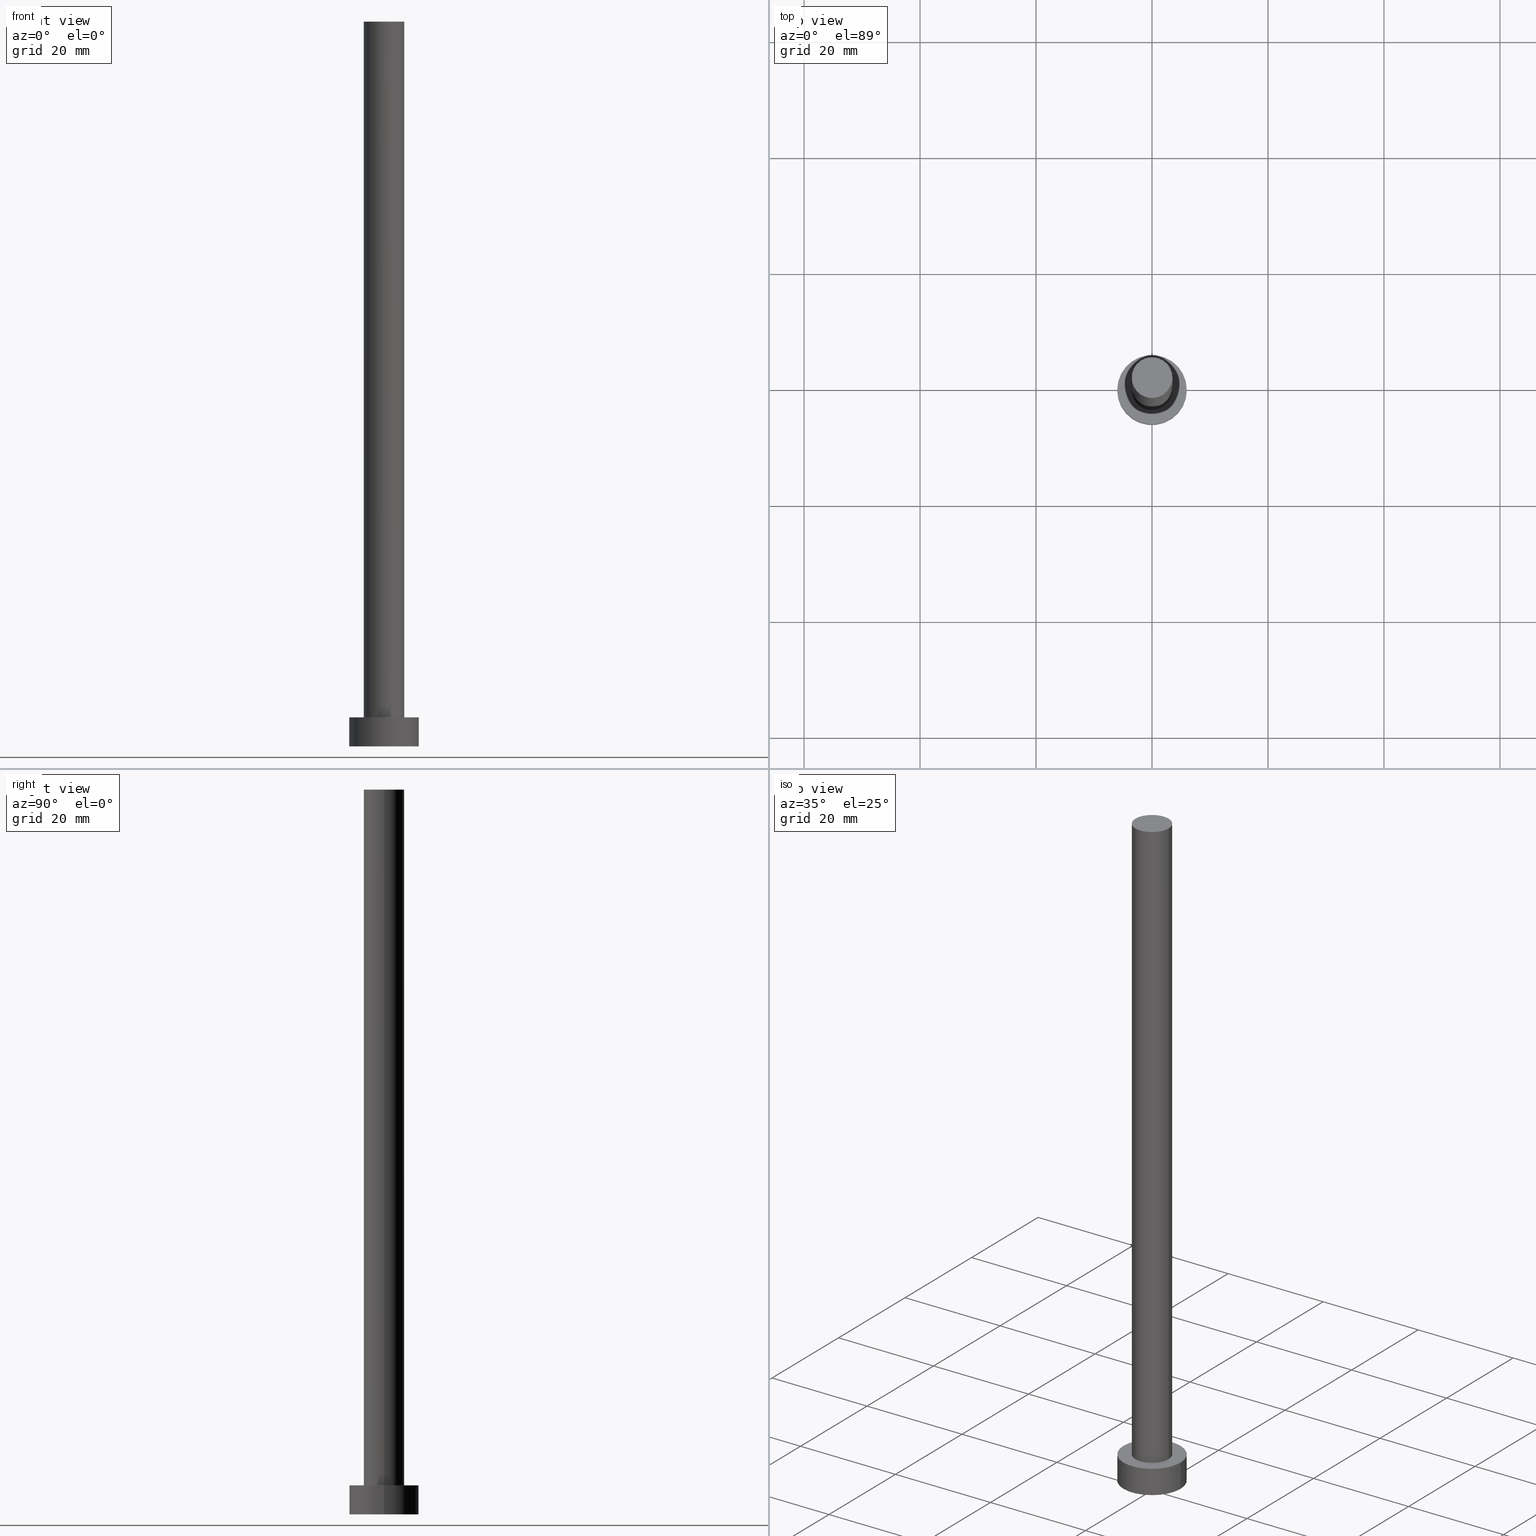
[diagram: canonical four-view strip — front | top / right | iso, engineering-drawing reading convention]
A machine part, canonical four-view strip (front | top / right | iso — engineering-drawing reading convention). The complete STEP part file that produces these views, byte-faithful:
ISO-10303-21;
HEADER;
FILE_DESCRIPTION (( 'STEP AP203' ),
    '1' );
FILE_NAME ('aa55.STEP',
    '2023-02-13T11:47:05',
    ( '' ),
    ( '' ),
    'SwSTEP 2.0',
    'SolidWorks 2019',
    '' );
FILE_SCHEMA (( 'CONFIG_CONTROL_DESIGN' ));
ENDSEC;

DATA;
#1 = AXIS2_PLACEMENT_3D ( 'NONE', #41, #119, #62 ) ;
#2 = ADVANCED_FACE ( 'NONE', ( #132 ), #53, .T. ) ;
#3 = DATE_AND_TIME ( #31, #36 ) ;
#4 = EDGE_LOOP ( 'NONE', ( #186, #8 ) ) ;
#5 = AXIS2_PLACEMENT_3D ( 'NONE', #191, #19, #210 ) ;
#6 = EDGE_LOOP ( 'NONE', ( #76, #201, #235, #87 ) ) ;
#7 = APPROVAL_ROLE ( '' ) ;
#8 = ORIENTED_EDGE ( 'NONE', *, *, #80, .T. ) ;
#9 = EDGE_CURVE ( 'NONE', #204, #182, #140, .T. ) ;
#10 = ORIENTED_EDGE ( 'NONE', *, *, #29, .F. ) ;
#11 = PRODUCT_RELATED_PRODUCT_CATEGORY ( 'detail', '', ( #180 ) ) ;
#12 = AXIS2_PLACEMENT_3D ( 'NONE', #127, #220, #113 ) ;
#13 = DIRECTION ( 'NONE',  ( 0.000000000000000000, 0.000000000000000000, 1.000000000000000000 ) ) ;
#14 = CARTESIAN_POINT ( 'NONE',  ( 0.000000000000000000, 0.000000000000000000, 5.000000000000000000 ) ) ;
#15 = ADVANCED_FACE ( 'NONE', ( #208, #239 ), #223, .T. ) ;
#16 = CC_DESIGN_PERSON_AND_ORGANIZATION_ASSIGNMENT ( #222, #55, ( #216 ) ) ;
#17 = FACE_OUTER_BOUND ( 'NONE', #112, .T. ) ;
#18 = EDGE_CURVE ( 'NONE', #169, #32, #149, .T. ) ;
#19 = DIRECTION ( 'NONE',  ( -0.000000000000000000, -0.000000000000000000, -1.000000000000000000 ) ) ;
#20 = CC_DESIGN_APPROVAL ( #43, ( #114 ) ) ;
#21 = PERSON_AND_ORGANIZATION_ROLE ( 'design_owner' ) ;
#22 = ORGANIZATION ( 'NEUR�EN�', 'NEUR�EN�', '' ) ;
#23 = CALENDAR_DATE ( 2023, 13, 2 ) ;
#24 = DATE_TIME_ROLE ( 'creation_date' ) ;
#25 = ORIENTED_EDGE ( 'NONE', *, *, #109, .T. ) ;
#26 = EDGE_LOOP ( 'NONE', ( #92, #86 ) ) ;
#27 = AXIS2_PLACEMENT_3D ( 'NONE', #240, #133, #71 ) ;
#28 = SECURITY_CLASSIFICATION_LEVEL ( 'unclassified' ) ;
#29 = EDGE_CURVE ( 'NONE', #155, #213, #203, .T. ) ;
#30 = ORIENTED_EDGE ( 'NONE', *, *, #101, .T. ) ;
#31 = CALENDAR_DATE ( 2023, 13, 2 ) ;
#32 = VERTEX_POINT ( 'NONE', #226 ) ;
#33 = ORIENTED_EDGE ( 'NONE', *, *, #211, .F. ) ;
#34 = VECTOR ( 'NONE', #154, 1000.000000000000000 ) ;
#35 = CYLINDRICAL_SURFACE ( 'NONE', #1, 6.000000000000000888 ) ;
#36 = LOCAL_TIME ( 12, 47, 5.000000000000000000, #187 ) ;
#37 = CARTESIAN_POINT ( 'NONE',  ( 6.000000000000000888, 7.347880794884120722E-16, 0.000000000000000000 ) ) ;
#38 = DIRECTION ( 'NONE',  ( -0.000000000000000000, -0.000000000000000000, -1.000000000000000000 ) ) ;
#39 = EDGE_CURVE ( 'NONE', #32, #214, #194, .T. ) ;
#40 = CC_DESIGN_SECURITY_CLASSIFICATION ( #114, ( #216 ) ) ;
#41 = CARTESIAN_POINT ( 'NONE',  ( 0.000000000000000000, 0.000000000000000000, 5.000000000000000000 ) ) ;
#42 = LOCAL_TIME ( 12, 47, 5.000000000000000000, #217 ) ;
#43 = APPROVAL ( #107, 'NEUR�EN�' ) ;
#44 = APPROVAL_DATE_TIME ( #84, #245 ) ;
#45 = EDGE_LOOP ( 'NONE', ( #184, #33 ) ) ;
#46 = AXIS2_PLACEMENT_3D ( 'NONE', #170, #151, #129 ) ;
#47 = CIRCLE ( 'NONE', #231, 6.000000000000000888 ) ;
#48 = DATE_AND_TIME ( #72, #74 ) ;
#49 = ORIENTED_EDGE ( 'NONE', *, *, #137, .F. ) ;
#50 = APPLICATION_CONTEXT ( 'configuration controlled 3d designs of mechanical parts and assemblies' ) ;
#51 = DIRECTION ( 'NONE',  ( 1.000000000000000000, 0.000000000000000000, 0.000000000000000000 ) ) ;
#52 = DATE_AND_TIME ( #163, #135 ) ;
#53 = CYLINDRICAL_SURFACE ( 'NONE', #168, 3.500000000000000000 ) ;
#54 = ADVANCED_BREP_SHAPE_REPRESENTATION ( 'aa55', ( #144, #147 ), #229 ) ;
#55 = PERSON_AND_ORGANIZATION_ROLE ( 'design_supplier' ) ;
#56 = EDGE_LOOP ( 'NONE', ( #90, #25, #242, #218 ) ) ;
#57 = ORIENTED_EDGE ( 'NONE', *, *, #9, .F. ) ;
#58 = DIRECTION ( 'NONE',  ( -0.000000000000000000, -0.000000000000000000, -1.000000000000000000 ) ) ;
#59 = AXIS2_PLACEMENT_3D ( 'NONE', #165, #202, #206 ) ;
#60 = CYLINDRICAL_SURFACE ( 'NONE', #5, 6.000000000000000888 ) ;
#61 = FACE_OUTER_BOUND ( 'NONE', #4, .T. ) ;
#62 = DIRECTION ( 'NONE',  ( -1.000000000000000000, 0.000000000000000000, 0.000000000000000000 ) ) ;
#63 = AXIS2_PLACEMENT_3D ( 'NONE', #188, #13, #94 ) ;
#64 = CARTESIAN_POINT ( 'NONE',  ( 0.000000000000000000, 0.000000000000000000, 125.0000000000000000 ) ) ;
#65 = CIRCLE ( 'NONE', #159, 3.500000000000000000 ) ;
#66 = COORDINATED_UNIVERSAL_TIME_OFFSET ( 1, 0, .AHEAD. ) ;
#67 = APPLICATION_PROTOCOL_DEFINITION ( 'international standard', 'config_control_design', 1994, #50 ) ;
#68 = PERSON_AND_ORGANIZATION ( #199, #22 ) ;
#69 = AXIS2_PLACEMENT_3D ( 'NONE', #254, #251, #172 ) ;
#70 = DIRECTION ( 'NONE',  ( 0.000000000000000000, 0.000000000000000000, 1.000000000000000000 ) ) ;
#71 = DIRECTION ( 'NONE',  ( 1.000000000000000000, 0.000000000000000000, 0.000000000000000000 ) ) ;
#72 = CALENDAR_DATE ( 2023, 13, 2 ) ;
#73 = DIRECTION ( 'NONE',  ( -1.000000000000000000, 0.000000000000000000, 0.000000000000000000 ) ) ;
#74 = LOCAL_TIME ( 12, 47, 5.000000000000000000, #205 ) ;
#75 = EDGE_LOOP ( 'NONE', ( #179, #200, #166, #126 ) ) ;
#76 = ORIENTED_EDGE ( 'NONE', *, *, #101, .F. ) ;
#77 = FACE_OUTER_BOUND ( 'NONE', #111, .T. ) ;
#78 = CIRCLE ( 'NONE', #27, 3.500000000000000000 ) ;
#79 = DIRECTION ( 'NONE',  ( -1.000000000000000000, 0.000000000000000000, 0.000000000000000000 ) ) ;
#80 = EDGE_CURVE ( 'NONE', #108, #169, #78, .T. ) ;
#81 =( NAMED_UNIT ( * ) SI_UNIT ( $, .STERADIAN. ) SOLID_ANGLE_UNIT ( ) );
#82 = DIRECTION ( 'NONE',  ( 0.000000000000000000, 0.000000000000000000, 1.000000000000000000 ) ) ;
#83 = CARTESIAN_POINT ( 'NONE',  ( 3.500000000000000000, 4.286263797015736595E-16, 125.0000000000000000 ) ) ;
#84 = DATE_AND_TIME ( #23, #118 ) ;
#85 = VECTOR ( 'NONE', #209, 1000.000000000000000 ) ;
#86 = ORIENTED_EDGE ( 'NONE', *, *, #29, .T. ) ;
#87 = ORIENTED_EDGE ( 'NONE', *, *, #9, .T. ) ;
#88 = CC_DESIGN_PERSON_AND_ORGANIZATION_ASSIGNMENT ( #198, #21, ( #180 ) ) ;
#89 = APPROVAL_DATE_TIME ( #48, #167 ) ;
#90 = ORIENTED_EDGE ( 'NONE', *, *, #80, .F. ) ;
#91 = PERSON_AND_ORGANIZATION ( #199, #22 ) ;
#92 = ORIENTED_EDGE ( 'NONE', *, *, #232, .T. ) ;
#93 = EDGE_CURVE ( 'NONE', #169, #108, #128, .T. ) ;
#94 = DIRECTION ( 'NONE',  ( 1.000000000000000000, 0.000000000000000000, 0.000000000000000000 ) ) ;
#95 = APPLICATION_CONTEXT ( 'configuration controlled 3d designs of mechanical parts and assemblies' ) ;
#96 = CARTESIAN_POINT ( 'NONE',  ( 0.000000000000000000, 0.000000000000000000, 0.000000000000000000 ) ) ;
#97 = DIRECTION ( 'NONE',  ( 0.000000000000000000, 0.000000000000000000, 1.000000000000000000 ) ) ;
#98 =( NAMED_UNIT ( * ) PLANE_ANGLE_UNIT ( ) SI_UNIT ( $, .RADIAN. ) );
#99 = PLANE ( 'NONE',  #69 ) ;
#100 = CARTESIAN_POINT ( 'NONE',  ( 3.500000000000000000, 4.286263797015736595E-16, 125.0000000000000000 ) ) ;
#101 = EDGE_CURVE ( 'NONE', #155, #182, #227, .T. ) ;
#102 = DIRECTION ( 'NONE',  ( 0.000000000000000000, 0.000000000000000000, 1.000000000000000000 ) ) ;
#103 = CC_DESIGN_PERSON_AND_ORGANIZATION_ASSIGNMENT ( #122, #241, ( #153 ) ) ;
#104 = CARTESIAN_POINT ( 'NONE',  ( 0.000000000000000000, 0.000000000000000000, 0.000000000000000000 ) ) ;
#105 = CC_DESIGN_DATE_AND_TIME_ASSIGNMENT ( #3, #207, ( #114 ) ) ;
#106 = CIRCLE ( 'NONE', #130, 6.000000000000000888 ) ;
#107 = APPROVAL_STATUS ( 'not_yet_approved' ) ;
#108 = VERTEX_POINT ( 'NONE', #83 ) ;
#109 = EDGE_CURVE ( 'NONE', #108, #214, #120, .T. ) ;
#110 = CARTESIAN_POINT ( 'NONE',  ( 0.000000000000000000, 0.000000000000000000, 5.000000000000000000 ) ) ;
#111 = EDGE_LOOP ( 'NONE', ( #10, #30, #246, #49 ) ) ;
#112 = EDGE_LOOP ( 'NONE', ( #57, #183 ) ) ;
#113 = DIRECTION ( 'NONE',  ( 1.000000000000000000, 0.000000000000000000, 0.000000000000000000 ) ) ;
#114 = SECURITY_CLASSIFICATION ( '', '', #28 ) ;
#115 = LINE ( 'NONE', #141, #221 ) ;
#116 = CARTESIAN_POINT ( 'NONE',  ( -6.000000000000000888, 0.000000000000000000, 5.000000000000000000 ) ) ;
#117 =( LENGTH_UNIT ( ) NAMED_UNIT ( * ) SI_UNIT ( .MILLI., .METRE. ) );
#118 = LOCAL_TIME ( 12, 47, 5.000000000000000000, #66 ) ;
#119 = DIRECTION ( 'NONE',  ( -0.000000000000000000, -0.000000000000000000, -1.000000000000000000 ) ) ;
#120 = LINE ( 'NONE', #100, #85 ) ;
#121 = AXIS2_PLACEMENT_3D ( 'NONE', #175, #134, #79 ) ;
#122 = PERSON_AND_ORGANIZATION ( #199, #22 ) ;
#123 = CC_DESIGN_PERSON_AND_ORGANIZATION_ASSIGNMENT ( #91, #238, ( #216 ) ) ;
#124 = CLOSED_SHELL ( 'NONE', ( #2, #146, #219, #15, #225, #142, #253 ) ) ;
#125 = APPROVAL_STATUS ( 'not_yet_approved' ) ;
#126 = ORIENTED_EDGE ( 'NONE', *, *, #39, .T. ) ;
#127 = CARTESIAN_POINT ( 'NONE',  ( 0.000000000000000000, 0.000000000000000000, 5.000000000000000000 ) ) ;
#128 = CIRCLE ( 'NONE', #63, 3.500000000000000000 ) ;
#129 = DIRECTION ( 'NONE',  ( 1.000000000000000000, 0.000000000000000000, 0.000000000000000000 ) ) ;
#130 = AXIS2_PLACEMENT_3D ( 'NONE', #248, #250, #174 ) ;
#131 = PERSON_AND_ORGANIZATION ( #199, #22 ) ;
#132 = FACE_OUTER_BOUND ( 'NONE', #56, .T. ) ;
#133 = DIRECTION ( 'NONE',  ( 0.000000000000000000, 0.000000000000000000, 1.000000000000000000 ) ) ;
#134 = DIRECTION ( 'NONE',  ( -0.000000000000000000, -0.000000000000000000, -1.000000000000000000 ) ) ;
#135 = LOCAL_TIME ( 12, 47, 5.000000000000000000, #185 ) ;
#136 = CYLINDRICAL_SURFACE ( 'NONE', #121, 3.500000000000000000 ) ;
#137 = EDGE_CURVE ( 'NONE', #213, #204, #115, .T. ) ;
#138 = DIRECTION ( 'NONE',  ( 1.000000000000000000, 0.000000000000000000, -0.000000000000000000 ) ) ;
#139 = DIRECTION ( 'NONE',  ( 1.000000000000000000, 0.000000000000000000, 0.000000000000000000 ) ) ;
#140 = CIRCLE ( 'NONE', #46, 6.000000000000000888 ) ;
#141 = CARTESIAN_POINT ( 'NONE',  ( -6.000000000000000888, 0.000000000000000000, 5.000000000000000000 ) ) ;
#142 = ADVANCED_FACE ( 'NONE', ( #156 ), #136, .T. ) ;
#143 = CC_DESIGN_PERSON_AND_ORGANIZATION_ASSIGNMENT ( #131, #237, ( #114 ) ) ;
#144 = MANIFOLD_SOLID_BREP ( 'P�idat vysunut�m3', #124 ) ;
#145 = APPROVAL_DATE_TIME ( #52, #43 ) ;
#146 = ADVANCED_FACE ( 'NONE', ( #77 ), #35, .T. ) ;
#147 = AXIS2_PLACEMENT_3D ( 'NONE', #104, #102, #177 ) ;
#148 = CARTESIAN_POINT ( 'NONE',  ( -3.500000000000000000, 0.000000000000000000, 125.0000000000000000 ) ) ;
#149 = LINE ( 'NONE', #148, #34 ) ;
#150 = PERSON_AND_ORGANIZATION ( #199, #22 ) ;
#151 = DIRECTION ( 'NONE',  ( 0.000000000000000000, 0.000000000000000000, 1.000000000000000000 ) ) ;
#152 = APPROVAL_PERSON_ORGANIZATION ( #150, #167, #215 ) ;
#153 = PRODUCT_DEFINITION ( 'NEZN�M�', '', #216, #234 ) ;
#154 = DIRECTION ( 'NONE',  ( -0.000000000000000000, -0.000000000000000000, -1.000000000000000000 ) ) ;
#155 = VERTEX_POINT ( 'NONE', #228 ) ;
#156 = FACE_OUTER_BOUND ( 'NONE', #75, .T. ) ;
#157 = APPROVAL_PERSON_ORGANIZATION ( #161, #245, #233 ) ;
#158 = PLANE ( 'NONE',  #189 ) ;
#159 = AXIS2_PLACEMENT_3D ( 'NONE', #14, #97, #139 ) ;
#160 = APPROVAL_STATUS ( 'not_yet_approved' ) ;
#161 = PERSON_AND_ORGANIZATION ( #199, #22 ) ;
#162 = VECTOR ( 'NONE', #38, 1000.000000000000000 ) ;
#163 = CALENDAR_DATE ( 2023, 13, 2 ) ;
#164 = DIRECTION ( 'NONE',  ( -0.000000000000000000, -0.000000000000000000, -1.000000000000000000 ) ) ;
#165 = CARTESIAN_POINT ( 'NONE',  ( 0.000000000000000000, 0.000000000000000000, 5.000000000000000000 ) ) ;
#166 = ORIENTED_EDGE ( 'NONE', *, *, #18, .T. ) ;
#167 = APPROVAL ( #125, 'NEUR�EN�' ) ;
#168 = AXIS2_PLACEMENT_3D ( 'NONE', #244, #164, #73 ) ;
#169 = VERTEX_POINT ( 'NONE', #171 ) ;
#170 = CARTESIAN_POINT ( 'NONE',  ( 0.000000000000000000, 0.000000000000000000, 0.000000000000000000 ) ) ;
#171 = CARTESIAN_POINT ( 'NONE',  ( -3.500000000000000000, 0.000000000000000000, 125.0000000000000000 ) ) ;
#172 = DIRECTION ( 'NONE',  ( 1.000000000000000000, 0.000000000000000000, -0.000000000000000000 ) ) ;
#173 = APPROVAL_PERSON_ORGANIZATION ( #68, #43, #7 ) ;
#174 = DIRECTION ( 'NONE',  ( 1.000000000000000000, 0.000000000000000000, 0.000000000000000000 ) ) ;
#175 = CARTESIAN_POINT ( 'NONE',  ( 0.000000000000000000, 0.000000000000000000, 125.0000000000000000 ) ) ;
#176 = AXIS2_PLACEMENT_3D ( 'NONE', #110, #70, #51 ) ;
#177 = DIRECTION ( 'NONE',  ( 1.000000000000000000, 0.000000000000000000, 0.000000000000000000 ) ) ;
#178 = EDGE_CURVE ( 'NONE', #182, #204, #47, .T. ) ;
#179 = ORIENTED_EDGE ( 'NONE', *, *, #109, .F. ) ;
#180 = PRODUCT ( 'aa55', 'aa55', '', ( #197 ) ) ;
#181 = SHAPE_DEFINITION_REPRESENTATION ( #252, #54 ) ;
#182 = VERTEX_POINT ( 'NONE', #37 ) ;
#183 = ORIENTED_EDGE ( 'NONE', *, *, #178, .F. ) ;
#184 = ORIENTED_EDGE ( 'NONE', *, *, #39, .F. ) ;
#185 = COORDINATED_UNIVERSAL_TIME_OFFSET ( 1, 0, .AHEAD. ) ;
#186 = ORIENTED_EDGE ( 'NONE', *, *, #93, .T. ) ;
#187 = COORDINATED_UNIVERSAL_TIME_OFFSET ( 1, 0, .AHEAD. ) ;
#188 = CARTESIAN_POINT ( 'NONE',  ( 0.000000000000000000, 0.000000000000000000, 125.0000000000000000 ) ) ;
#189 = AXIS2_PLACEMENT_3D ( 'NONE', #64, #82, #138 ) ;
#190 = CARTESIAN_POINT ( 'NONE',  ( 6.000000000000000888, 7.347880794884120722E-16, 5.000000000000000000 ) ) ;
#191 = CARTESIAN_POINT ( 'NONE',  ( 0.000000000000000000, 0.000000000000000000, 5.000000000000000000 ) ) ;
#192 = CARTESIAN_POINT ( 'NONE',  ( 3.500000000000000000, 4.286263797015736595E-16, 5.000000000000000000 ) ) ;
#193 = FACE_OUTER_BOUND ( 'NONE', #6, .T. ) ;
#194 = CIRCLE ( 'NONE', #176, 3.500000000000000000 ) ;
#195 = UNCERTAINTY_MEASURE_WITH_UNIT (LENGTH_MEASURE( 1.000000000000000082E-05 ), #117, 'distance_accuracy_value', 'NONE');
#196 = CC_DESIGN_APPROVAL ( #245, ( #153 ) ) ;
#197 = MECHANICAL_CONTEXT ( 'NONE', #50, 'mechanical' ) ;
#198 = PERSON_AND_ORGANIZATION ( #199, #22 ) ;
#199 = PERSON ( 'NEUR�EN�', 'NEUR�EN�', 'NEUR�EN�', ('NEUR�EN�'), ('NEUR�EN�'), ('NEUR�EN�') ) ;
#200 = ORIENTED_EDGE ( 'NONE', *, *, #93, .F. ) ;
#201 = ORIENTED_EDGE ( 'NONE', *, *, #232, .F. ) ;
#202 = DIRECTION ( 'NONE',  ( 0.000000000000000000, 0.000000000000000000, 1.000000000000000000 ) ) ;
#203 = CIRCLE ( 'NONE', #12, 6.000000000000000888 ) ;
#204 = VERTEX_POINT ( 'NONE', #230 ) ;
#205 = COORDINATED_UNIVERSAL_TIME_OFFSET ( 1, 0, .AHEAD. ) ;
#206 = DIRECTION ( 'NONE',  ( 1.000000000000000000, 0.000000000000000000, -0.000000000000000000 ) ) ;
#207 = DATE_TIME_ROLE ( 'classification_date' ) ;
#208 = FACE_BOUND ( 'NONE', #45, .T. ) ;
#209 = DIRECTION ( 'NONE',  ( -0.000000000000000000, -0.000000000000000000, -1.000000000000000000 ) ) ;
#210 = DIRECTION ( 'NONE',  ( -1.000000000000000000, 0.000000000000000000, 0.000000000000000000 ) ) ;
#211 = EDGE_CURVE ( 'NONE', #214, #32, #65, .T. ) ;
#212 = DIRECTION ( 'NONE',  ( 0.000000000000000000, 0.000000000000000000, 1.000000000000000000 ) ) ;
#213 = VERTEX_POINT ( 'NONE', #116 ) ;
#214 = VERTEX_POINT ( 'NONE', #192 ) ;
#215 = APPROVAL_ROLE ( '' ) ;
#216 = PRODUCT_DEFINITION_FORMATION_WITH_SPECIFIED_SOURCE ( 'LIBOVOLN�', '', #180, .NOT_KNOWN. ) ;
#217 = COORDINATED_UNIVERSAL_TIME_OFFSET ( 1, 0, .AHEAD. ) ;
#218 = ORIENTED_EDGE ( 'NONE', *, *, #18, .F. ) ;
#219 = ADVANCED_FACE ( 'NONE', ( #193 ), #60, .T. ) ;
#220 = DIRECTION ( 'NONE',  ( 0.000000000000000000, 0.000000000000000000, 1.000000000000000000 ) ) ;
#221 = VECTOR ( 'NONE', #58, 1000.000000000000000 ) ;
#222 = PERSON_AND_ORGANIZATION ( #199, #22 ) ;
#223 = PLANE ( 'NONE',  #59 ) ;
#224 = CALENDAR_DATE ( 2023, 13, 2 ) ;
#225 = ADVANCED_FACE ( 'NONE', ( #17 ), #99, .F. ) ;
#226 = CARTESIAN_POINT ( 'NONE',  ( -3.500000000000000000, 0.000000000000000000, 5.000000000000000000 ) ) ;
#227 = LINE ( 'NONE', #190, #162 ) ;
#228 = CARTESIAN_POINT ( 'NONE',  ( 6.000000000000000888, 7.347880794884120722E-16, 5.000000000000000000 ) ) ;
#229 =( GEOMETRIC_REPRESENTATION_CONTEXT ( 3 ) GLOBAL_UNCERTAINTY_ASSIGNED_CONTEXT ( ( #195 ) ) GLOBAL_UNIT_ASSIGNED_CONTEXT ( ( #117, #98, #81 ) ) REPRESENTATION_CONTEXT ( 'NONE', 'WORKASPACE' ) );
#230 = CARTESIAN_POINT ( 'NONE',  ( -6.000000000000000888, 0.000000000000000000, 0.000000000000000000 ) ) ;
#231 = AXIS2_PLACEMENT_3D ( 'NONE', #96, #212, #247 ) ;
#232 = EDGE_CURVE ( 'NONE', #213, #155, #106, .T. ) ;
#233 = APPROVAL_ROLE ( '' ) ;
#234 = DESIGN_CONTEXT ( 'detailed design', #95, 'design' ) ;
#235 = ORIENTED_EDGE ( 'NONE', *, *, #137, .T. ) ;
#236 = CC_DESIGN_DATE_AND_TIME_ASSIGNMENT ( #243, #24, ( #153 ) ) ;
#237 = PERSON_AND_ORGANIZATION_ROLE ( 'classification_officer' ) ;
#238 = PERSON_AND_ORGANIZATION_ROLE ( 'creator' ) ;
#239 = FACE_OUTER_BOUND ( 'NONE', #26, .T. ) ;
#240 = CARTESIAN_POINT ( 'NONE',  ( 0.000000000000000000, 0.000000000000000000, 125.0000000000000000 ) ) ;
#241 = PERSON_AND_ORGANIZATION_ROLE ( 'creator' ) ;
#242 = ORIENTED_EDGE ( 'NONE', *, *, #211, .T. ) ;
#243 = DATE_AND_TIME ( #224, #42 ) ;
#244 = CARTESIAN_POINT ( 'NONE',  ( 0.000000000000000000, 0.000000000000000000, 125.0000000000000000 ) ) ;
#245 = APPROVAL ( #160, 'NEUR�EN�' ) ;
#246 = ORIENTED_EDGE ( 'NONE', *, *, #178, .T. ) ;
#247 = DIRECTION ( 'NONE',  ( 1.000000000000000000, 0.000000000000000000, 0.000000000000000000 ) ) ;
#248 = CARTESIAN_POINT ( 'NONE',  ( 0.000000000000000000, 0.000000000000000000, 5.000000000000000000 ) ) ;
#249 = CC_DESIGN_APPROVAL ( #167, ( #216 ) ) ;
#250 = DIRECTION ( 'NONE',  ( 0.000000000000000000, 0.000000000000000000, 1.000000000000000000 ) ) ;
#251 = DIRECTION ( 'NONE',  ( 0.000000000000000000, 0.000000000000000000, 1.000000000000000000 ) ) ;
#252 = PRODUCT_DEFINITION_SHAPE ( 'NONE', 'NONE',  #153 ) ;
#253 = ADVANCED_FACE ( 'NONE', ( #61 ), #158, .T. ) ;
#254 = CARTESIAN_POINT ( 'NONE',  ( 0.000000000000000000, 0.000000000000000000, 0.000000000000000000 ) ) ;
#255 = APPLICATION_PROTOCOL_DEFINITION ( 'international standard', 'config_control_design', 1994, #95 ) ;
ENDSEC;
END-ISO-10303-21;
